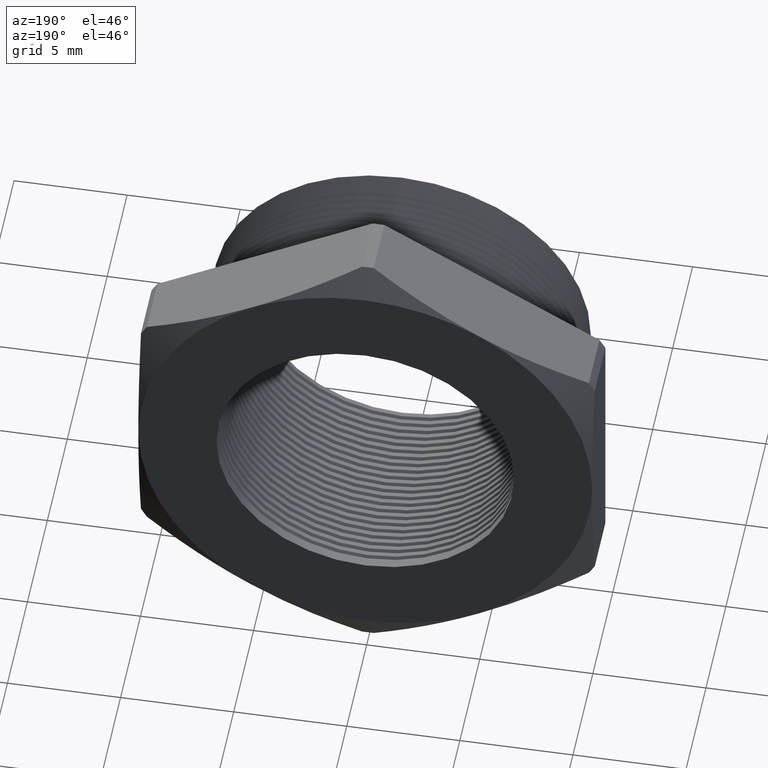
[diagram: clean part render]
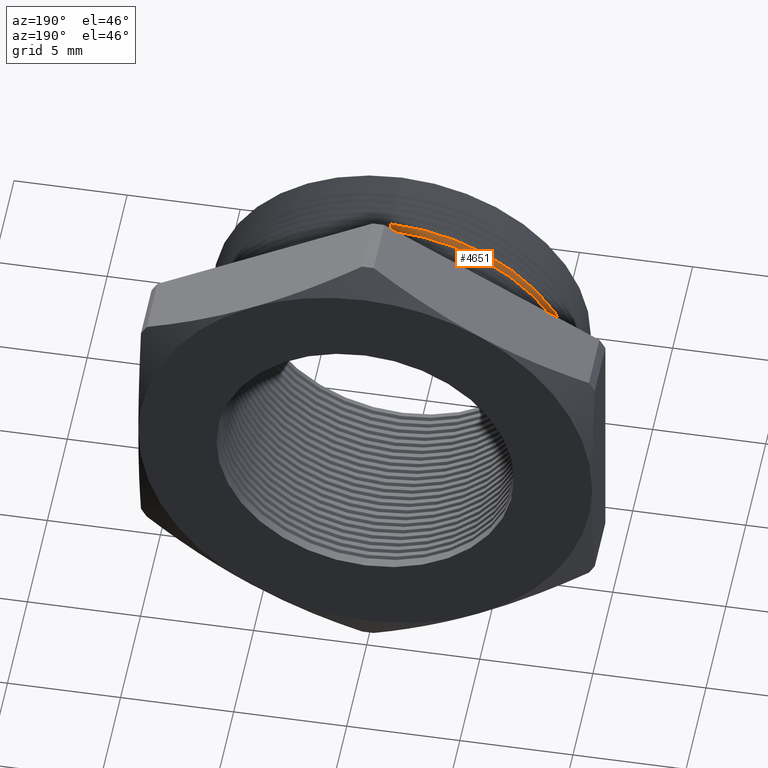
[diagram: same view with one face highlighted and labeled with its STEP entity id]
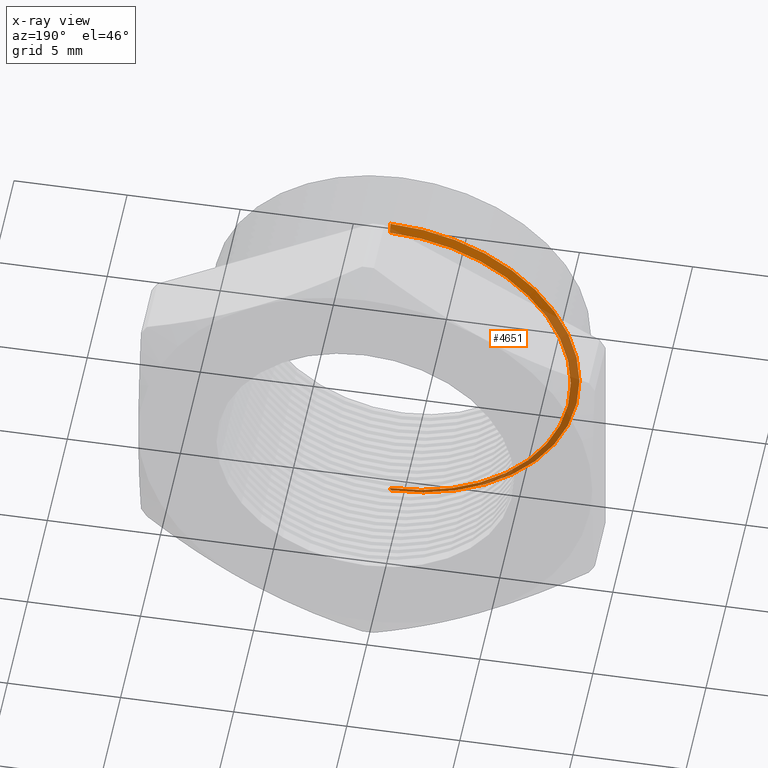
[diagram: x-ray of the same camera — body ghosted, the highlighted face saturated]
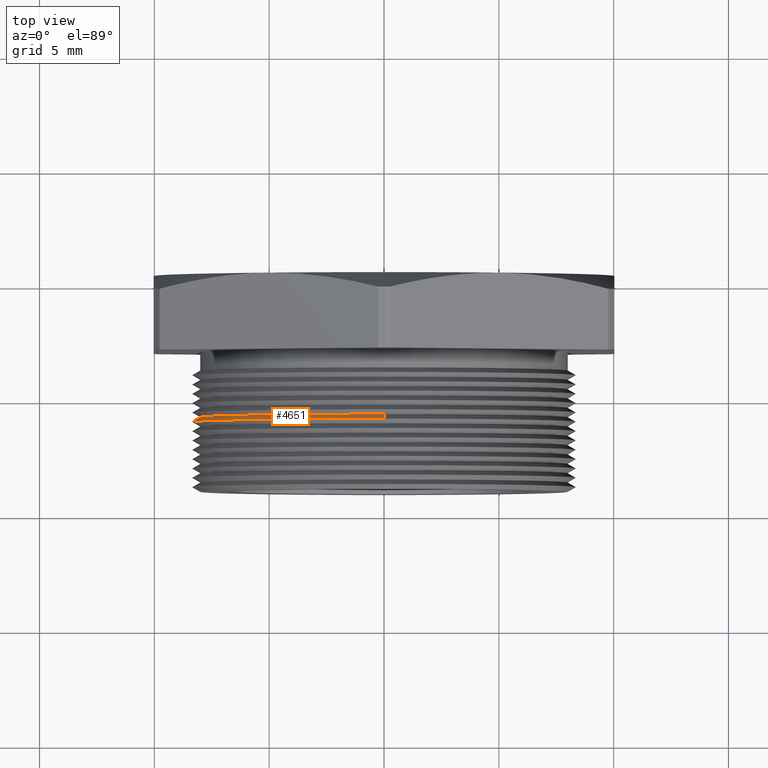
[diagram: same view with one face highlighted and labeled with its STEP entity id]
A machine part, auxiliary view. The second image highlights one B-rep face of the part: STEP entity #4651.
The next image is the same camera in x-ray: the body ghosted, the highlighted face saturated — about 45% of this face is hidden behind the body in this view.
A second angle (top view) of the same face is appended — the face is thin or edge-on in the first view.
In plain terms, the highlighted conical surface has half-angle 60 deg.
Its self-contained STEP definition (entity closure, byte-faithful):
#1293 = CARTESIAN_POINT ( 'NONE',  ( 0.0000000000000000000, 0.1575548905829479700, -0.3287738815610546400 ) ) ;
#1393 = LINE ( 'NONE', #1456, #1455 ) ;
#1398 = CARTESIAN_POINT ( 'NONE',  ( 0.0000000000000000000, 0.1655072448100088900, -0.3150000000000000000 ) ) ;
#1454 = DIRECTION ( 'NONE',  ( 0.0000000000000000000, -0.4999999999999991100, -0.8660254037844391500 ) ) ;
#1455 = VECTOR ( 'NONE', #1454, 39.37007874015748100 ) ;
#1456 = CARTESIAN_POINT ( 'NONE',  ( 0.0000000000000000000, 0.1655072448100088900, -0.3150000000000000000 ) ) ;
#1558 = CARTESIAN_POINT ( 'NONE',  ( 3.857637417314162700E-017, 0.1655072448100088900, 0.3150000000000000000 ) ) ;
#1564 = DIRECTION ( 'NONE',  ( 1.060575238724907500E-016, -0.4999999999999991100, 0.8660254037844391500 ) ) ;
#1565 = VECTOR ( 'NONE', #1564, 39.37007874015748100 ) ;
#1566 = CARTESIAN_POINT ( 'NONE',  ( 3.857637417314162700E-017, 0.1655072448100088900, 0.3150000000000000000 ) ) ;
#1567 = LINE ( 'NONE', #1566, #1565 ) ;
#1621 = CARTESIAN_POINT ( 'NONE',  ( 4.026318816969966200E-017, 0.1575548905829479700, 0.3287738815610546400 ) ) ;
#3820 = DIRECTION ( 'NONE',  ( 0.0000000000000000000, 0.0000000000000000000, -1.000000000000000000 ) ) ;
#3821 = DIRECTION ( 'NONE',  ( 0.0000000000000000000, -1.000000000000000000, 0.0000000000000000000 ) ) ;
#3822 = CARTESIAN_POINT ( 'NONE',  ( 0.0000000000000000000, 0.1655072448100088900, 0.0000000000000000000 ) ) ;
#3823 = AXIS2_PLACEMENT_3D ( 'NONE', #3822, #3821, #3820 ) ;
#3824 = CIRCLE ( 'NONE', #3823, 0.3150000000000000000 ) ;
#4077 = DIRECTION ( 'NONE',  ( 0.0000000000000000000, 0.0000000000000000000, 1.000000000000000000 ) ) ;
#4078 = DIRECTION ( 'NONE',  ( -0.0000000000000000000, 1.000000000000000000, -0.0000000000000000000 ) ) ;
#4079 = CARTESIAN_POINT ( 'NONE',  ( 0.0000000000000000000, 0.1575548905829479700, 0.0000000000000000000 ) ) ;
#4080 = AXIS2_PLACEMENT_3D ( 'NONE', #4079, #4078, #4077 ) ;
#4081 = CIRCLE ( 'NONE', #4080, 0.3287738815610546400 ) ;
#4141 = DIRECTION ( 'NONE',  ( 0.0000000000000000000, 0.0000000000000000000, -1.000000000000000000 ) ) ;
#4142 = DIRECTION ( 'NONE',  ( 0.0000000000000000000, -1.000000000000000000, 0.0000000000000000000 ) ) ;
#4143 = CARTESIAN_POINT ( 'NONE',  ( 0.0000000000000000000, 0.1655072448100088900, 0.0000000000000000000 ) ) ;
#4144 = AXIS2_PLACEMENT_3D ( 'NONE', #4143, #4142, #4141 ) ;
#4145 = CONICAL_SURFACE ( 'NONE', #4144, 0.3150000000000000000, 1.047197551196598700 ) ;
#4146 = FACE_OUTER_BOUND ( 'NONE', #4645, .T. ) ;
#4456 = EDGE_CURVE ( 'NONE', #5941, #5856, #3824, .T. ) ;
#4548 = ORIENTED_EDGE ( 'NONE', *, *, #4594, .T. ) ;
#4592 = ORIENTED_EDGE ( 'NONE', *, *, #4456, .T. ) ;
#4594 = EDGE_CURVE ( 'NONE', #5777, #5973, #4081, .T. ) ;
#4645 = EDGE_LOOP ( 'NONE', ( #4649, #4592, #4648, #4548 ) ) ;
#4648 = ORIENTED_EDGE ( 'NONE', *, *, #5859, .T. ) ;
#4649 = ORIENTED_EDGE ( 'NONE', *, *, #5936, .F. ) ;
#4651 = ADVANCED_FACE ( 'NONE', ( #4146 ), #4145, .T. ) ;
#5777 = VERTEX_POINT ( 'NONE', #1293 ) ;
#5856 = VERTEX_POINT ( 'NONE', #1398 ) ;
#5859 = EDGE_CURVE ( 'NONE', #5856, #5777, #1393, .T. ) ;
#5936 = EDGE_CURVE ( 'NONE', #5941, #5973, #1567, .T. ) ;
#5941 = VERTEX_POINT ( 'NONE', #1558 ) ;
#5973 = VERTEX_POINT ( 'NONE', #1621 ) ;